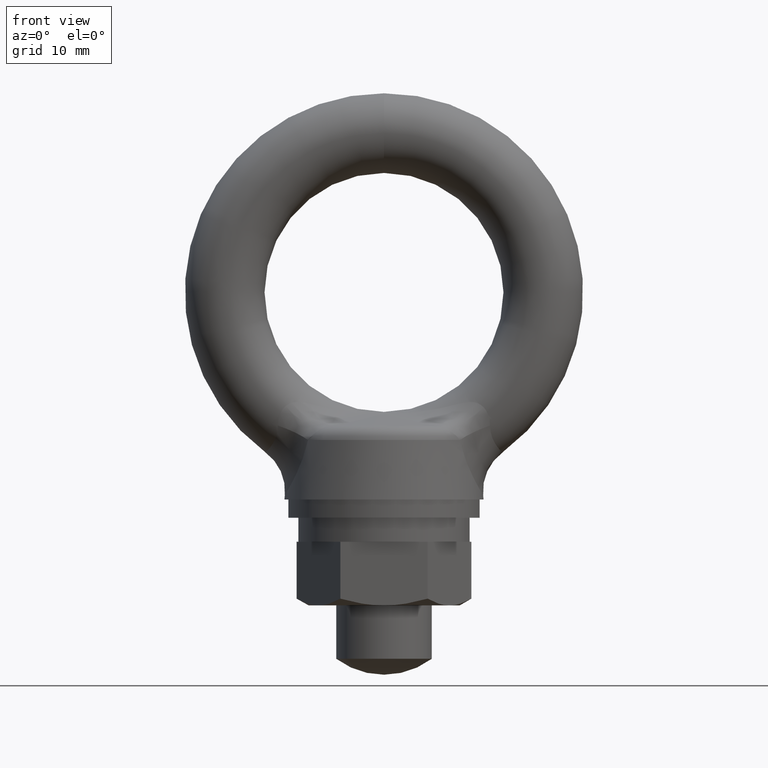
[diagram: clean part render]
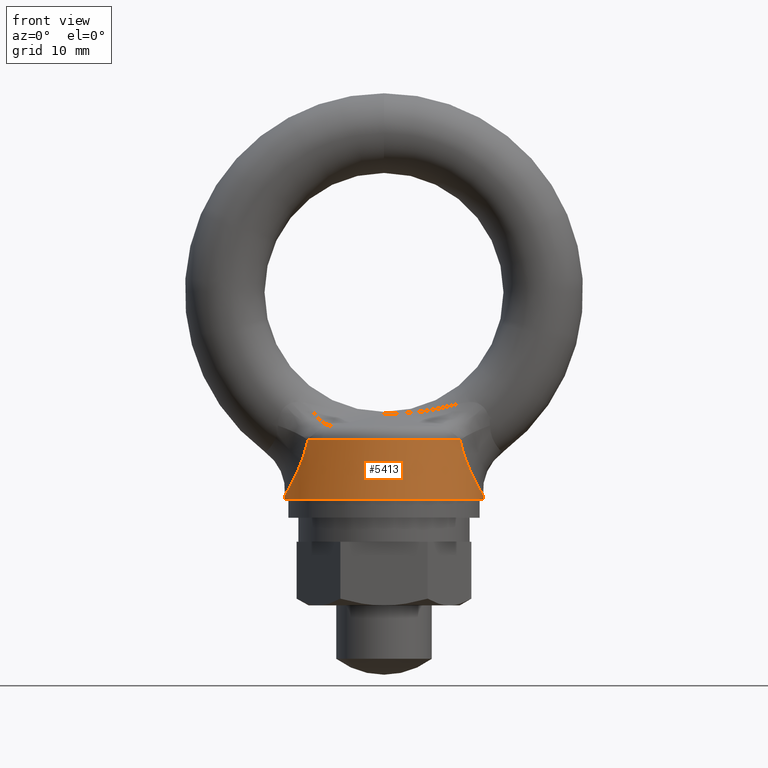
[diagram: same view with one face highlighted and labeled with its STEP entity id]
A machine part, front view. The second image highlights one B-rep face of the part: STEP entity #5413.
In plain terms, the highlighted conical surface has half-angle 5 deg.
Its self-contained STEP definition (entity closure, byte-faithful):
#1234 = CARTESIAN_POINT ( 'NONE',  ( -11.99141115473464600, -3.127144519072736700, -24.68440014934374500 ) ) ;
#1235 = CARTESIAN_POINT ( 'NONE',  ( -11.86142583846850200, -3.514622673509397300, -24.45826386940192900 ) ) ;
#1236 = CARTESIAN_POINT ( 'NONE',  ( -11.57488952450168200, -4.235463422628451500, -23.93558727860952100 ) ) ;
#1237 = CARTESIAN_POINT ( 'NONE',  ( -11.41714718436717700, -4.569992358712800000, -23.63638550375814900 ) ) ;
#1238 = CARTESIAN_POINT ( 'NONE',  ( -11.09872289182367300, -5.164921739002295500, -22.99428844101146700 ) ) ;
#1239 = CARTESIAN_POINT ( 'NONE',  ( -10.93665807783517600, -5.429214624262226800, -22.64906191750238700 ) ) ;
#1240 = CARTESIAN_POINT ( 'NONE',  ( -10.61622047733006900, -5.900356533474816700, -21.91276534793892600 ) ) ;
#1241 = CARTESIAN_POINT ( 'NONE',  ( -10.45669660235153000, -6.108283797157365100, -21.51827580455521600 ) ) ;
#1242 = CARTESIAN_POINT ( 'NONE',  ( -10.00833203752153200, -6.639022738003525600, -20.30107479248610900 ) ) ;
#1243 = CARTESIAN_POINT ( 'NONE',  ( -9.747748083559029600, -6.875675435108130200, -19.44038875397900800 ) ) ;
#1249 = CARTESIAN_POINT ( 'NONE',  ( -9.537127817778650000, -7.028310572481229800, -18.53738990767994800 ) ) ;
#1251 = B_SPLINE_CURVE_WITH_KNOTS ( 'NONE', 3,
 ( #1249, #1243, #1242, #1241, #1240, #1239, #1238, #1237, #1236, #1235, #1234, #1299, #1298, #1297, #1296, #1295, #1294, #1293 ),
 .UNSPECIFIED., .F., .F.,
 ( 4, 2, 2, 2, 2, 2, 2, 2, 4 ),
 ( 0.0000000000000000000, 0.002787622095590863800, 0.004181433143386296800, 0.005575244191181730200, 0.006969055238977162800, 0.008362866286772595300, 0.009756677334568031300, 0.01045358285846574600, 0.01115048838236346200 ),
 .UNSPECIFIED. ) ;
#1253 = CARTESIAN_POINT ( 'NONE',  ( -9.537127817778650000, -7.028310572481229800, -18.53738990767994800 ) ) ;
#1254 = DIRECTION ( 'NONE',  ( 1.000000000000000000, 0.0000000000000000000, 0.0000000000000000000 ) ) ;
#1255 = DIRECTION ( 'NONE',  ( 0.0000000000000000000, 0.0000000000000000000, -1.000000000000000000 ) ) ;
#1256 = CARTESIAN_POINT ( 'NONE',  ( 0.0000000000000000000, 0.0000000000000000000, -18.53738990767994800 ) ) ;
#1257 = AXIS2_PLACEMENT_3D ( 'NONE', #1256, #1255, #1254 ) ;
#1258 = CIRCLE ( 'NONE', #1257, 11.84710751685402000 ) ;
#1263 = CARTESIAN_POINT ( 'NONE',  ( 9.537127817778650000, -7.028310572481229800, -18.53738990767994800 ) ) ;
#1264 = DIRECTION ( 'NONE',  ( 0.08715557049437074000, 1.067312653984205100E-017, -0.9961947131619404100 ) ) ;
#1265 = VECTOR ( 'NONE', #1264, 1000.000000000000000 ) ;
#1266 = CARTESIAN_POINT ( 'NONE',  ( 11.71260343085933900, 1.434332858123212400E-015, -16.99999810809054800 ) ) ;
#1267 = LINE ( 'NONE', #1266, #1265 ) ;
#1269 = CARTESIAN_POINT ( 'NONE',  ( 11.86380587293027300, -3.507620518944544400, -24.46242173991319600 ) ) ;
#1270 = CARTESIAN_POINT ( 'NONE',  ( 11.99372452213098400, -3.119818732456168100, -24.68840420212936600 ) ) ;
#1271 = CARTESIAN_POINT ( 'NONE',  ( 12.21470733298421900, -2.279987469087981600, -25.06385049372084200 ) ) ;
#1272 = CARTESIAN_POINT ( 'NONE',  ( 12.30165692199544800, -1.842452632200408200, -25.20653693680832300 ) ) ;
#1273 = CARTESIAN_POINT ( 'NONE',  ( 12.39044319748947000, -1.167260228111846900, -25.35115793627376500 ) ) ;
#1274 = CARTESIAN_POINT ( 'NONE',  ( 12.41319058787413200, -0.9386162426869045800, -25.38789169253615400 ) ) ;
#1275 = CARTESIAN_POINT ( 'NONE',  ( 12.44394573087962100, -0.4738058768848437700, -25.43746257142040800 ) ) ;
#1280 = CARTESIAN_POINT ( 'NONE',  ( 12.45190025687759100, -0.2365623819847583200, -25.45021632546028200 ) ) ;
#1281 = CARTESIAN_POINT ( 'NONE',  ( 12.45190025687759000, 2.022871150557335200E-015, -25.45021632546027100 ) ) ;
#1282 = B_SPLINE_CURVE_WITH_KNOTS ( 'NONE', 3,
 ( #1281, #1280, #1275, #1274, #1273, #1272, #1271, #1270, #1269, #1338, #1337, #1336, #1335, #1334, #1333, #1332, #1331, #1330, #1329, #1328 ),
 .UNSPECIFIED., .F., .F.,
 ( 4, 2, 2, 2, 2, 2, 2, 2, 2, 4 ),
 ( 0.01115048838236345700, 0.01184826878578839600, 0.01254604918921333600, 0.01394160999606321900, 0.01533717080291310100, 0.01603495120633804600, 0.01673273160976299100, 0.01812829241661288000, 0.01952385322346277000, 0.02231497483716255200 ),
 .UNSPECIFIED. ) ;
#1293 = CARTESIAN_POINT ( 'NONE',  ( -12.45190025687759000, -2.339362847956557300E-016, -25.45021632546027100 ) ) ;
#1294 = CARTESIAN_POINT ( 'NONE',  ( -12.45190025687758600, -0.2362657792371128100, -25.45021632546028200 ) ) ;
#1295 = CARTESIAN_POINT ( 'NONE',  ( -12.44399269484547900, -0.4726663066412690200, -25.43753794055879100 ) ) ;
#1296 = CARTESIAN_POINT ( 'NONE',  ( -12.41331499441207200, -0.9371634545402763900, -25.38809253510212500 ) ) ;
#1297 = CARTESIAN_POINT ( 'NONE',  ( -12.39056664627564400, -1.166373747082029000, -25.35135933383455500 ) ) ;
#1298 = CARTESIAN_POINT ( 'NONE',  ( -12.30128564797720100, -1.845171329602888700, -25.20593154838641300 ) ) ;
#1299 = CARTESIAN_POINT ( 'NONE',  ( -12.21249492225357800, -2.289831864146585300, -25.06016382854524200 ) ) ;
#1328 = CARTESIAN_POINT ( 'NONE',  ( 9.537127817778650000, -7.028310572481229800, -18.53738990767994800 ) ) ;
#1329 = CARTESIAN_POINT ( 'NONE',  ( 9.747962166699789300, -6.875520290447776800, -19.44130659931719400 ) ) ;
#1330 = CARTESIAN_POINT ( 'NONE',  ( 10.00924046025497000, -6.638386004184890300, -20.30441599964827400 ) ) ;
#1331 = CARTESIAN_POINT ( 'NONE',  ( 10.46015427619892600, -6.103968714109892200, -21.52721929893736400 ) ) ;
#1332 = CARTESIAN_POINT ( 'NONE',  ( 10.61887934430379800, -5.896753397048271100, -21.91919012279204900 ) ) ;
#1333 = CARTESIAN_POINT ( 'NONE',  ( 10.93962964857104600, -5.424533862790804400, -22.65556908990000600 ) ) ;
#1334 = CARTESIAN_POINT ( 'NONE',  ( 11.10252691376592400, -5.158676729975294300, -23.00236581542127500 ) ) ;
#1335 = CARTESIAN_POINT ( 'NONE',  ( 11.34361378353651500, -4.706925945252432800, -23.48789309735742800 ) ) ;
#1336 = CARTESIAN_POINT ( 'NONE',  ( 11.42312895908937200, -4.547863360382016200, -23.64330907225307500 ) ) ;
#1337 = CARTESIAN_POINT ( 'NONE',  ( 11.57645015130006700, -4.217439439946752500, -23.93589969591633300 ) ) ;
#1338 = CARTESIAN_POINT ( 'NONE',  ( 11.65064418857640400, -4.045375698878414600, -24.07386127779499700 ) ) ;
#2529 = CARTESIAN_POINT ( 'NONE',  ( -12.45190025687759000, -2.339362847956557300E-016, -25.45021632546027100 ) ) ;
#2530 = DIRECTION ( 'NONE',  ( -0.08715557049437074000, 0.0000000000000000000, -0.9961947131619404100 ) ) ;
#2531 = VECTOR ( 'NONE', #2530, 1000.000000000000000 ) ;
#2532 = CARTESIAN_POINT ( 'NONE',  ( -11.71260343085933900, 0.0000000000000000000, -16.99999810809054800 ) ) ;
#2533 = LINE ( 'NONE', #2532, #2531 ) ;
#2534 = CARTESIAN_POINT ( 'NONE',  ( -12.50000000000000700, 0.0000000000000000000, -26.00000000000000000 ) ) ;
#2652 = CARTESIAN_POINT ( 'NONE',  ( 12.50000000000000700, 1.530757942277972600E-015, -26.00000000000000000 ) ) ;
#2676 = CARTESIAN_POINT ( 'NONE',  ( 12.45190025687759000, 2.022871150557335200E-015, -25.45021632546027100 ) ) ;
#2737 = DIRECTION ( 'NONE',  ( -1.000000000000000000, 0.0000000000000000000, 0.0000000000000000000 ) ) ;
#2738 = DIRECTION ( 'NONE',  ( 0.0000000000000000000, 0.0000000000000000000, -1.000000000000000000 ) ) ;
#2739 = CARTESIAN_POINT ( 'NONE',  ( 0.0000000000000000000, 0.0000000000000000000, -26.00000000000000000 ) ) ;
#2740 = AXIS2_PLACEMENT_3D ( 'NONE', #2739, #2738, #2737 ) ;
#2741 = CIRCLE ( 'NONE', #2740, 12.50000000000000000 ) ;
#5413 = ADVANCED_FACE ( 'NONE', ( #7139 ), #7141, .T. ) ;
#5414 = ORIENTED_EDGE ( 'NONE', *, *, #5456, .F. ) ;
#5438 = EDGE_LOOP ( 'NONE', ( #5414, #5477, #5461, #5464, #5466, #5467 ) ) ;
#5456 = EDGE_CURVE ( 'NONE', #5548, #5550, #1267, .T. ) ;
#5460 = VERTEX_POINT ( 'NONE', #1263 ) ;
#5461 = ORIENTED_EDGE ( 'NONE', *, *, #5462, .T. ) ;
#5462 = EDGE_CURVE ( 'NONE', #5460, #5463, #1258, .T. ) ;
#5463 = VERTEX_POINT ( 'NONE', #1253 ) ;
#5464 = ORIENTED_EDGE ( 'NONE', *, *, #5465, .T. ) ;
#5465 = EDGE_CURVE ( 'NONE', #5463, #5512, #1251, .T. ) ;
#5466 = ORIENTED_EDGE ( 'NONE', *, *, #5511, .T. ) ;
#5467 = ORIENTED_EDGE ( 'NONE', *, *, #5579, .F. ) ;
#5477 = ORIENTED_EDGE ( 'NONE', *, *, #5478, .T. ) ;
#5478 = EDGE_CURVE ( 'NONE', #5548, #5460, #1282, .T. ) ;
#5509 = VERTEX_POINT ( 'NONE', #2534 ) ;
#5511 = EDGE_CURVE ( 'NONE', #5512, #5509, #2533, .T. ) ;
#5512 = VERTEX_POINT ( 'NONE', #2529 ) ;
#5548 = VERTEX_POINT ( 'NONE', #2676 ) ;
#5550 = VERTEX_POINT ( 'NONE', #2652 ) ;
#5579 = EDGE_CURVE ( 'NONE', #5550, #5509, #2741, .T. ) ;
#7101 = DIRECTION ( 'NONE',  ( -1.000000000000000000, 0.0000000000000000000, 0.0000000000000000000 ) ) ;
#7102 = DIRECTION ( 'NONE',  ( 0.0000000000000000000, 0.0000000000000000000, -1.000000000000000000 ) ) ;
#7103 = CARTESIAN_POINT ( 'NONE',  ( 0.0000000000000000000, 0.0000000000000000000, -16.99999810809054800 ) ) ;
#7104 = AXIS2_PLACEMENT_3D ( 'NONE', #7103, #7102, #7101 ) ;
#7139 = FACE_OUTER_BOUND ( 'NONE', #5438, .T. ) ;
#7141 = CONICAL_SURFACE ( 'NONE', #7104, 11.71260343085933900, 0.08726628968845077900 ) ;